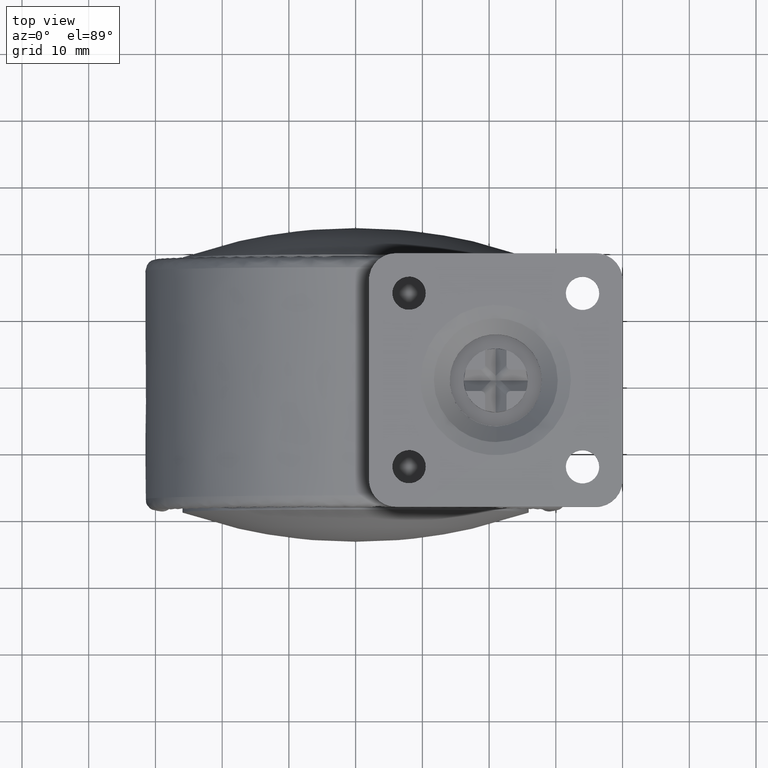
[diagram: clean part render]
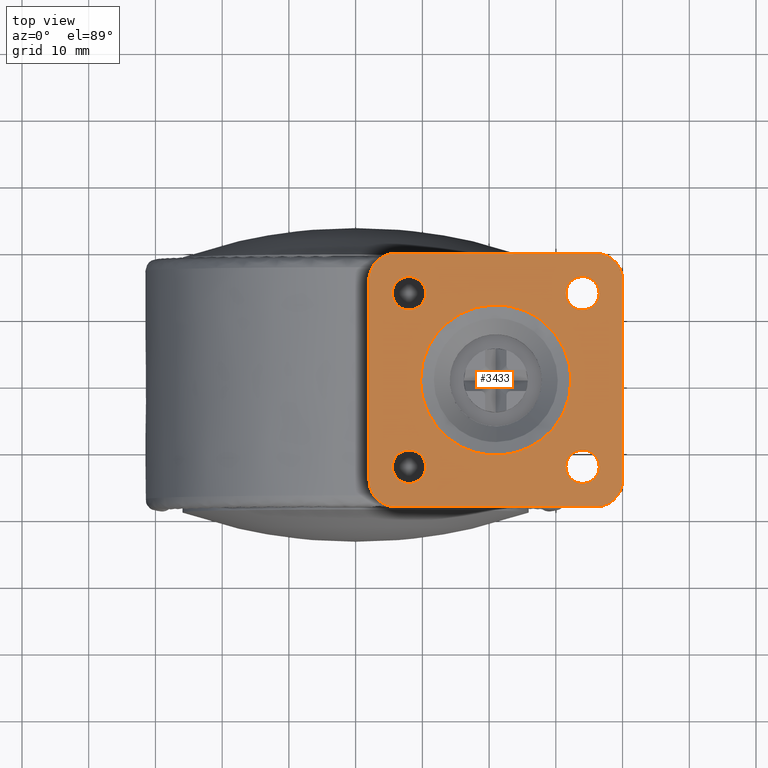
[diagram: same view with one face highlighted and labeled with its STEP entity id]
A machine part, top view. The second image highlights one B-rep face of the part: STEP entity #3433.
In plain terms, the highlighted face is a freeform B-spline surface patch.
Its self-contained STEP definition (entity closure, byte-faithful):
#1005=CARTESIAN_POINT('',(8.704914413077578,10.517476184124179,42.500000000000007));
#1006=VERTEX_POINT('',#1005);
#1012=CARTESIAN_POINT('',(11.500000000000000,13.0,42.500000000000000));
#1013=VERTEX_POINT('',#1012);
#1014=CARTESIAN_POINT('',(8.704914413077578,10.517476184124178,42.500000000000007));
#1015=CARTESIAN_POINT('',(8.851939700586733,10.499999999999996,42.500000000000000));
#1016=CARTESIAN_POINT('',(9.0,10.500000000000000,42.500000000000000));
#1017=CARTESIAN_POINT('',(11.500000000000000,10.499999999999998,42.500000000000000));
#1018=CARTESIAN_POINT('',(11.500000000000000,13.0,42.500000000000000));
#1026=(BOUNDED_CURVE()B_SPLINE_CURVE(2,(#1014,#1015,#1016,#1017,#1018),.UNSPECIFIED.,.F.,.U.)B_SPLINE_CURVE_WITH_KNOTS((3,2,3),(0.229562473477449,0.250000000000000,0.500000000000000),.UNSPECIFIED.)CURVE()GEOMETRIC_REPRESENTATION_ITEM()RATIONAL_B_SPLINE_CURVE((0.956026754113022,0.976055948288899,1.0,0.707106781186548,1.0))REPRESENTATION_ITEM(''));
#1027=EDGE_CURVE('',#1006,#1013,#1026,.T.);
#1029=CARTESIAN_POINT('',(9.152621348901288,15.495336996050741,42.500000000000000));
#1030=VERTEX_POINT('',#1029);
#1031=CARTESIAN_POINT('',(11.500000000000000,13.0,42.500000000000000));
#1032=CARTESIAN_POINT('',(11.499999999999998,15.351765167143089,42.499999999999993));
#1033=CARTESIAN_POINT('',(9.152621348901288,15.495336996050748,42.499999999999993));
#1041=(BOUNDED_CURVE()B_SPLINE_CURVE(2,(#1031,#1032,#1033),.UNSPECIFIED.,.F.,.U.)B_SPLINE_CURVE_WITH_KNOTS((3,3),(0.500000000000000,0.739332962233096),.UNSPECIFIED.)CURVE()GEOMETRIC_REPRESENTATION_ITEM()RATIONAL_B_SPLINE_CURVE((1.0,0.719603993293560,0.976072041654188))REPRESENTATION_ITEM(''));
#1042=EDGE_CURVE('',#1013,#1030,#1041,.T.);
#1116=CARTESIAN_POINT('',(6.499999999999999,13.0,42.500000000000000));
#1117=VERTEX_POINT('',#1116);
#1118=CARTESIAN_POINT('',(9.152621348901288,15.495336996050742,42.500000000000007));
#1119=CARTESIAN_POINT('',(9.076381908310799,15.500000000000005,42.500000000000000));
#1120=CARTESIAN_POINT('',(9.0,15.500000000000000,42.500000000000000));
#1121=CARTESIAN_POINT('',(6.499999999999999,15.500000000000004,42.500000000000000));
#1122=CARTESIAN_POINT('',(6.499999999999999,13.0,42.500000000000000));
#1130=(BOUNDED_CURVE()B_SPLINE_CURVE(2,(#1118,#1119,#1120,#1121,#1122),.UNSPECIFIED.,.F.,.U.)B_SPLINE_CURVE_WITH_KNOTS((3,2,3),(0.739332962233097,0.750000000000000,1.0),.UNSPECIFIED.)CURVE()GEOMETRIC_REPRESENTATION_ITEM()RATIONAL_B_SPLINE_CURVE((0.976072041654189,0.987502787892989,1.0,0.707106781186548,1.0))REPRESENTATION_ITEM(''));
#1131=EDGE_CURVE('',#1030,#1117,#1130,.T.);
#1133=CARTESIAN_POINT('',(6.499999999999999,13.0,42.500000000000000));
#1134=CARTESIAN_POINT('',(6.499999999999999,10.779563685626934,42.499999999999993));
#1135=CARTESIAN_POINT('',(8.704914413077578,10.517476184124178,42.500000000000007));
#1143=(BOUNDED_CURVE()B_SPLINE_CURVE(2,(#1133,#1134,#1135),.UNSPECIFIED.,.F.,.U.)B_SPLINE_CURVE_WITH_KNOTS((3,3),(0.0,0.229562473477449),.UNSPECIFIED.)CURVE()GEOMETRIC_REPRESENTATION_ITEM()RATIONAL_B_SPLINE_CURVE((1.0,0.731050832897648,0.956026754113022))REPRESENTATION_ITEM(''));
#1144=EDGE_CURVE('',#1117,#1006,#1143,.T.);
#1191=CARTESIAN_POINT('',(34.704914413077567,10.517476184124179,42.500000000000000));
#1192=VERTEX_POINT('',#1191);
#1198=CARTESIAN_POINT('',(37.500000000000007,13.0,42.500000000000000));
#1199=VERTEX_POINT('',#1198);
#1200=CARTESIAN_POINT('',(34.704914413077567,10.517476184124178,42.500000000000000));
#1201=CARTESIAN_POINT('',(34.851939700586726,10.500000000000004,42.499999999999993));
#1202=CARTESIAN_POINT('',(35.0,10.500000000000000,42.500000000000000));
#1203=CARTESIAN_POINT('',(37.500000000000007,10.499999999999998,42.500000000000000));
#1204=CARTESIAN_POINT('',(37.500000000000007,13.0,42.500000000000000));
#1212=(BOUNDED_CURVE()B_SPLINE_CURVE(2,(#1200,#1201,#1202,#1203,#1204),.UNSPECIFIED.,.F.,.U.)B_SPLINE_CURVE_WITH_KNOTS((3,2,3),(0.229562473477449,0.250000000000000,0.500000000000000),.UNSPECIFIED.)CURVE()GEOMETRIC_REPRESENTATION_ITEM()RATIONAL_B_SPLINE_CURVE((0.956026754113021,0.976055948288899,1.0,0.707106781186548,1.0))REPRESENTATION_ITEM(''));
#1213=EDGE_CURVE('',#1192,#1199,#1212,.T.);
#1215=CARTESIAN_POINT('',(35.152621348901292,15.495336996050741,42.500000000000000));
#1216=VERTEX_POINT('',#1215);
#1217=CARTESIAN_POINT('',(37.500000000000007,13.0,42.500000000000000));
#1218=CARTESIAN_POINT('',(37.500000000000007,15.351765167143089,42.499999999999993));
#1219=CARTESIAN_POINT('',(35.152621348901292,15.495336996050748,42.499999999999993));
#1227=(BOUNDED_CURVE()B_SPLINE_CURVE(2,(#1217,#1218,#1219),.UNSPECIFIED.,.F.,.U.)B_SPLINE_CURVE_WITH_KNOTS((3,3),(0.500000000000000,0.739332962233096),.UNSPECIFIED.)CURVE()GEOMETRIC_REPRESENTATION_ITEM()RATIONAL_B_SPLINE_CURVE((1.0,0.719603993293560,0.976072041654188))REPRESENTATION_ITEM(''));
#1228=EDGE_CURVE('',#1199,#1216,#1227,.T.);
#1302=CARTESIAN_POINT('',(32.500000000000000,13.0,42.500000000000000));
#1303=VERTEX_POINT('',#1302);
#1304=CARTESIAN_POINT('',(35.152621348901299,15.495336996050746,42.500000000000000));
#1305=CARTESIAN_POINT('',(35.076381908310793,15.499999999999996,42.500000000000007));
#1306=CARTESIAN_POINT('',(35.0,15.500000000000000,42.500000000000000));
#1307=CARTESIAN_POINT('',(32.500000000000007,15.500000000000004,42.500000000000000));
#1308=CARTESIAN_POINT('',(32.500000000000000,13.0,42.500000000000000));
#1316=(BOUNDED_CURVE()B_SPLINE_CURVE(2,(#1304,#1305,#1306,#1307,#1308),.UNSPECIFIED.,.F.,.U.)B_SPLINE_CURVE_WITH_KNOTS((3,2,3),(0.739332962233097,0.750000000000000,1.0),.UNSPECIFIED.)CURVE()GEOMETRIC_REPRESENTATION_ITEM()RATIONAL_B_SPLINE_CURVE((0.976072041654189,0.987502787892989,1.0,0.707106781186548,1.0))REPRESENTATION_ITEM(''));
#1317=EDGE_CURVE('',#1216,#1303,#1316,.T.);
#1319=CARTESIAN_POINT('',(32.500000000000000,13.0,42.500000000000000));
#1320=CARTESIAN_POINT('',(32.500000000000000,10.779563685626941,42.499999999999986));
#1321=CARTESIAN_POINT('',(34.704914413077567,10.517476184124178,42.500000000000000));
#1329=(BOUNDED_CURVE()B_SPLINE_CURVE(2,(#1319,#1320,#1321),.UNSPECIFIED.,.F.,.U.)B_SPLINE_CURVE_WITH_KNOTS((3,3),(0.0,0.229562473477449),.UNSPECIFIED.)CURVE()GEOMETRIC_REPRESENTATION_ITEM()RATIONAL_B_SPLINE_CURVE((1.0,0.731050832897649,0.956026754113021))REPRESENTATION_ITEM(''));
#1330=EDGE_CURVE('',#1303,#1192,#1329,.T.);
#1377=CARTESIAN_POINT('',(34.704914413077567,-15.482523815875821,42.500000000000000));
#1378=VERTEX_POINT('',#1377);
#1384=CARTESIAN_POINT('',(37.500000000000007,-13.0,42.500000000000000));
#1385=VERTEX_POINT('',#1384);
#1386=CARTESIAN_POINT('',(34.704914413077567,-15.482523815875817,42.499999999999993));
#1387=CARTESIAN_POINT('',(34.851939700586726,-15.499999999999998,42.500000000000000));
#1388=CARTESIAN_POINT('',(35.0,-15.500000000000000,42.500000000000000));
#1389=CARTESIAN_POINT('',(37.500000000000007,-15.500000000000004,42.500000000000000));
#1390=CARTESIAN_POINT('',(37.500000000000007,-13.0,42.500000000000000));
#1398=(BOUNDED_CURVE()B_SPLINE_CURVE(2,(#1386,#1387,#1388,#1389,#1390),.UNSPECIFIED.,.F.,.U.)B_SPLINE_CURVE_WITH_KNOTS((3,2,3),(0.229562473477448,0.250000000000000,0.500000000000000),.UNSPECIFIED.)CURVE()GEOMETRIC_REPRESENTATION_ITEM()RATIONAL_B_SPLINE_CURVE((0.956026754113020,0.976055948288898,1.0,0.707106781186548,1.0))REPRESENTATION_ITEM(''));
#1399=EDGE_CURVE('',#1378,#1385,#1398,.T.);
#1401=CARTESIAN_POINT('',(35.152621348901292,-10.504663003949259,42.500000000000000));
#1402=VERTEX_POINT('',#1401);
#1403=CARTESIAN_POINT('',(37.500000000000007,-13.0,42.500000000000000));
#1404=CARTESIAN_POINT('',(37.500000000000007,-10.648234832856907,42.499999999999993));
#1405=CARTESIAN_POINT('',(35.152621348901292,-10.504663003949254,42.499999999999993));
#1413=(BOUNDED_CURVE()B_SPLINE_CURVE(2,(#1403,#1404,#1405),.UNSPECIFIED.,.F.,.U.)B_SPLINE_CURVE_WITH_KNOTS((3,3),(0.500000000000000,0.739332962233096),.UNSPECIFIED.)CURVE()GEOMETRIC_REPRESENTATION_ITEM()RATIONAL_B_SPLINE_CURVE((1.0,0.719603993293560,0.976072041654188))REPRESENTATION_ITEM(''));
#1414=EDGE_CURVE('',#1385,#1402,#1413,.T.);
#1488=CARTESIAN_POINT('',(32.500000000000000,-13.0,42.500000000000000));
#1489=VERTEX_POINT('',#1488);
#1490=CARTESIAN_POINT('',(35.152621348901299,-10.504663003949259,42.500000000000000));
#1491=CARTESIAN_POINT('',(35.076381908310793,-10.499999999999998,42.500000000000007));
#1492=CARTESIAN_POINT('',(35.0,-10.500000000000000,42.500000000000000));
#1493=CARTESIAN_POINT('',(32.500000000000007,-10.499999999999998,42.500000000000000));
#1494=CARTESIAN_POINT('',(32.500000000000000,-13.0,42.500000000000000));
#1502=(BOUNDED_CURVE()B_SPLINE_CURVE(2,(#1490,#1491,#1492,#1493,#1494),.UNSPECIFIED.,.F.,.U.)B_SPLINE_CURVE_WITH_KNOTS((3,2,3),(0.739332962233097,0.750000000000000,1.0),.UNSPECIFIED.)CURVE()GEOMETRIC_REPRESENTATION_ITEM()RATIONAL_B_SPLINE_CURVE((0.976072041654189,0.987502787892989,1.0,0.707106781186548,1.0))REPRESENTATION_ITEM(''));
#1503=EDGE_CURVE('',#1402,#1489,#1502,.T.);
#1505=CARTESIAN_POINT('',(32.500000000000000,-13.0,42.500000000000000));
#1506=CARTESIAN_POINT('',(32.499999999999986,-15.220436314373051,42.499999999999993));
#1507=CARTESIAN_POINT('',(34.704914413077567,-15.482523815875817,42.499999999999993));
#1515=(BOUNDED_CURVE()B_SPLINE_CURVE(2,(#1505,#1506,#1507),.UNSPECIFIED.,.F.,.U.)B_SPLINE_CURVE_WITH_KNOTS((3,3),(0.0,0.229562473477448),.UNSPECIFIED.)CURVE()GEOMETRIC_REPRESENTATION_ITEM()RATIONAL_B_SPLINE_CURVE((1.0,0.731050832897649,0.956026754113020))REPRESENTATION_ITEM(''));
#1516=EDGE_CURVE('',#1489,#1378,#1515,.T.);
#1563=CARTESIAN_POINT('',(8.704914413077578,-15.482523815875821,42.500000000000000));
#1564=VERTEX_POINT('',#1563);
#1570=CARTESIAN_POINT('',(11.500000000000000,-13.0,42.500000000000000));
#1571=VERTEX_POINT('',#1570);
#1572=CARTESIAN_POINT('',(8.704914413077578,-15.482523815875819,42.500000000000007));
#1573=CARTESIAN_POINT('',(8.851939700586732,-15.500000000000002,42.500000000000007));
#1574=CARTESIAN_POINT('',(9.0,-15.500000000000000,42.500000000000000));
#1575=CARTESIAN_POINT('',(11.500000000000000,-15.500000000000004,42.500000000000000));
#1576=CARTESIAN_POINT('',(11.500000000000000,-13.0,42.500000000000000));
#1584=(BOUNDED_CURVE()B_SPLINE_CURVE(2,(#1572,#1573,#1574,#1575,#1576),.UNSPECIFIED.,.F.,.U.)B_SPLINE_CURVE_WITH_KNOTS((3,2,3),(0.229562473477449,0.250000000000000,0.500000000000000),.UNSPECIFIED.)CURVE()GEOMETRIC_REPRESENTATION_ITEM()RATIONAL_B_SPLINE_CURVE((0.956026754113022,0.976055948288899,1.0,0.707106781186548,1.0))REPRESENTATION_ITEM(''));
#1585=EDGE_CURVE('',#1564,#1571,#1584,.T.);
#1587=CARTESIAN_POINT('',(9.152621348901288,-10.504663003949259,42.500000000000000));
#1588=VERTEX_POINT('',#1587);
#1589=CARTESIAN_POINT('',(11.500000000000000,-13.0,42.500000000000000));
#1590=CARTESIAN_POINT('',(11.499999999999998,-10.648234832856907,42.499999999999993));
#1591=CARTESIAN_POINT('',(9.152621348901288,-10.504663003949254,42.499999999999993));
#1599=(BOUNDED_CURVE()B_SPLINE_CURVE(2,(#1589,#1590,#1591),.UNSPECIFIED.,.F.,.U.)B_SPLINE_CURVE_WITH_KNOTS((3,3),(0.500000000000000,0.739332962233096),.UNSPECIFIED.)CURVE()GEOMETRIC_REPRESENTATION_ITEM()RATIONAL_B_SPLINE_CURVE((1.0,0.719603993293560,0.976072041654188))REPRESENTATION_ITEM(''));
#1600=EDGE_CURVE('',#1571,#1588,#1599,.T.);
#1674=CARTESIAN_POINT('',(6.499999999999999,-13.0,42.500000000000000));
#1675=VERTEX_POINT('',#1674);
#1676=CARTESIAN_POINT('',(9.152621348901288,-10.504663003949258,42.500000000000007));
#1677=CARTESIAN_POINT('',(9.076381908310799,-10.499999999999998,42.500000000000000));
#1678=CARTESIAN_POINT('',(9.0,-10.500000000000000,42.500000000000000));
#1679=CARTESIAN_POINT('',(6.499999999999999,-10.499999999999998,42.500000000000000));
#1680=CARTESIAN_POINT('',(6.499999999999999,-13.0,42.500000000000000));
#1688=(BOUNDED_CURVE()B_SPLINE_CURVE(2,(#1676,#1677,#1678,#1679,#1680),.UNSPECIFIED.,.F.,.U.)B_SPLINE_CURVE_WITH_KNOTS((3,2,3),(0.739332962233097,0.750000000000000,1.0),.UNSPECIFIED.)CURVE()GEOMETRIC_REPRESENTATION_ITEM()RATIONAL_B_SPLINE_CURVE((0.976072041654189,0.987502787892989,1.0,0.707106781186548,1.0))REPRESENTATION_ITEM(''));
#1689=EDGE_CURVE('',#1588,#1675,#1688,.T.);
#1691=CARTESIAN_POINT('',(6.499999999999999,-13.0,42.500000000000000));
#1692=CARTESIAN_POINT('',(6.499999999999999,-15.220436314373062,42.499999999999993));
#1693=CARTESIAN_POINT('',(8.704914413077578,-15.482523815875819,42.500000000000007));
#1701=(BOUNDED_CURVE()B_SPLINE_CURVE(2,(#1691,#1692,#1693),.UNSPECIFIED.,.F.,.U.)B_SPLINE_CURVE_WITH_KNOTS((3,3),(0.0,0.229562473477449),.UNSPECIFIED.)CURVE()GEOMETRIC_REPRESENTATION_ITEM()RATIONAL_B_SPLINE_CURVE((1.0,0.731050832897648,0.956026754113022))REPRESENTATION_ITEM(''));
#1702=EDGE_CURVE('',#1675,#1564,#1701,.T.);
#2710=CARTESIAN_POINT('',(14.498001018749560,8.402327325769043,42.500000000000000));
#2711=VERTEX_POINT('',#2710);
#2725=CARTESIAN_POINT('',(10.735937978865740,0.0,42.500000000000000));
#2726=VERTEX_POINT('',#2725);
#2727=CARTESIAN_POINT('',(10.735937978865740,0.0,42.500000000000000));
#2728=CARTESIAN_POINT('',(10.735937978865739,5.043377835646828,42.500000000000000));
#2729=CARTESIAN_POINT('',(14.498001018749560,8.402327325769043,42.500000000000007));
#2737=(BOUNDED_CURVE()B_SPLINE_CURVE(2,(#2727,#2728,#2729),.UNSPECIFIED.,.F.,.U.)B_SPLINE_CURVE_WITH_KNOTS((3,3),(0.0,0.133534809511743),.UNSPECIFIED.)CURVE()GEOMETRIC_REPRESENTATION_ITEM()RATIONAL_B_SPLINE_CURVE((1.0,0.843554239273857,0.854236117407596))REPRESENTATION_ITEM(''));
#2738=EDGE_CURVE('',#2726,#2711,#2737,.T.);
#2740=CARTESIAN_POINT('',(33.264062021134258,0.0,42.500000000000000));
#2741=VERTEX_POINT('',#2740);
#2742=CARTESIAN_POINT('',(33.264062021134258,0.0,42.500000000000000));
#2743=CARTESIAN_POINT('',(33.264062021134258,-11.264062021134260,42.500000000000000));
#2744=CARTESIAN_POINT('',(22.0,-11.264062021134260,42.500000000000000));
#2745=CARTESIAN_POINT('',(10.735937978865740,-11.264062021134260,42.500000000000000));
#2746=CARTESIAN_POINT('',(10.735937978865740,0.0,42.500000000000000));
#2754=(BOUNDED_CURVE()B_SPLINE_CURVE(2,(#2742,#2743,#2744,#2745,#2746),.UNSPECIFIED.,.F.,.U.)B_SPLINE_CURVE_WITH_KNOTS((3,2,3),(0.500000000000000,0.750000000000000,1.0),.UNSPECIFIED.)CURVE()GEOMETRIC_REPRESENTATION_ITEM()RATIONAL_B_SPLINE_CURVE((1.0,0.707106781186548,1.0,0.707106781186548,1.0))REPRESENTATION_ITEM(''));
#2755=EDGE_CURVE('',#2741,#2726,#2754,.T.);
#2757=CARTESIAN_POINT('',(28.963974201157431,8.853369783954797,42.500000000000000));
#2758=VERTEX_POINT('',#2757);
#2759=CARTESIAN_POINT('',(28.963974201157434,8.853369783954797,42.500000000000000));
#2760=CARTESIAN_POINT('',(33.264062021134251,5.470962704290574,42.499999999999993));
#2761=CARTESIAN_POINT('',(33.264062021134258,0.0,42.500000000000000));
#2769=(BOUNDED_CURVE()B_SPLINE_CURVE(2,(#2759,#2760,#2761),.UNSPECIFIED.,.F.,.U.)B_SPLINE_CURVE_WITH_KNOTS((3,3),(0.357040093183758,0.500000000000000),.UNSPECIFIED.)CURVE()GEOMETRIC_REPRESENTATION_ITEM()RATIONAL_B_SPLINE_CURVE((0.856576594591082,0.832512050925279,1.0))REPRESENTATION_ITEM(''));
#2770=EDGE_CURVE('',#2758,#2741,#2769,.T.);
#2807=CARTESIAN_POINT('',(14.498001018749560,8.402327325769043,42.500000000000007));
#2808=CARTESIAN_POINT('',(17.703177623550616,11.264062021134260,42.500000000000000));
#2809=CARTESIAN_POINT('',(22.0,11.264062021134260,42.500000000000000));
#2810=CARTESIAN_POINT('',(25.899237143066806,11.264062021134260,42.500000000000000));
#2811=CARTESIAN_POINT('',(28.963974201157434,8.853369783954797,42.500000000000000));
#2819=(BOUNDED_CURVE()B_SPLINE_CURVE(2,(#2807,#2808,#2809,#2810,#2811),.UNSPECIFIED.,.F.,.U.)B_SPLINE_CURVE_WITH_KNOTS((3,2,3),(0.133534809511743,0.250000000000000,0.357040093183758),.UNSPECIFIED.)CURVE()GEOMETRIC_REPRESENTATION_ITEM()RATIONAL_B_SPLINE_CURVE((0.854236117407596,0.863552541912690,1.0,0.874594730261268,0.856576594591082))REPRESENTATION_ITEM(''));
#2820=EDGE_CURVE('',#2711,#2758,#2819,.T.);
#3031=CARTESIAN_POINT('',(7.0,-19.0,42.500000000000000));
#3032=VERTEX_POINT('',#3031);
#3038=CARTESIAN_POINT('',(3.0,-15.0,42.500000000000000));
#3039=VERTEX_POINT('',#3038);
#3040=CARTESIAN_POINT('',(3.0,-15.0,42.500000000000000));
#3041=CARTESIAN_POINT('',(3.0,-18.999999999999993,42.500000000000000));
#3042=CARTESIAN_POINT('',(7.0,-19.0,42.500000000000000));
#3050=(BOUNDED_CURVE()B_SPLINE_CURVE(2,(#3040,#3041,#3042),.UNSPECIFIED.,.F.,.U.)CURVE()GEOMETRIC_REPRESENTATION_ITEM()QUASI_UNIFORM_CURVE()RATIONAL_B_SPLINE_CURVE((1.0,0.707106781186548,1.0))REPRESENTATION_ITEM(''));
#3051=EDGE_CURVE('',#3039,#3032,#3050,.T.);
#3074=CARTESIAN_POINT('',(37.0,-19.0,42.500000000000000));
#3075=VERTEX_POINT('',#3074);
#3081=CARTESIAN_POINT('',(37.0,-19.0,42.500000000000000));
#3082=CARTESIAN_POINT('',(7.0,-19.0,42.500000000000000));
#3083=QUASI_UNIFORM_CURVE('',1,(#3081,#3082),.UNSPECIFIED.,.F.,.U.);
#3084=EDGE_CURVE('',#3075,#3032,#3083,.T.);
#3118=CARTESIAN_POINT('',(41.0,-15.0,42.500000000000000));
#3119=VERTEX_POINT('',#3118);
#3125=CARTESIAN_POINT('',(37.0,-19.0,42.500000000000000));
#3126=CARTESIAN_POINT('',(41.0,-18.999999999999993,42.500000000000000));
#3127=CARTESIAN_POINT('',(40.999999999999993,-15.0,42.500000000000000));
#3135=(BOUNDED_CURVE()B_SPLINE_CURVE(2,(#3125,#3126,#3127),.UNSPECIFIED.,.F.,.U.)CURVE()GEOMETRIC_REPRESENTATION_ITEM()QUASI_UNIFORM_CURVE()RATIONAL_B_SPLINE_CURVE((1.0,0.707106781186548,1.0))REPRESENTATION_ITEM(''));
#3136=EDGE_CURVE('',#3075,#3119,#3135,.T.);
#3155=CARTESIAN_POINT('',(41.0,15.0,42.500000000000000));
#3156=VERTEX_POINT('',#3155);
#3162=CARTESIAN_POINT('',(41.0,15.0,42.500000000000000));
#3163=CARTESIAN_POINT('',(41.0,-15.0,42.500000000000000));
#3164=QUASI_UNIFORM_CURVE('',1,(#3162,#3163),.UNSPECIFIED.,.F.,.U.);
#3165=EDGE_CURVE('',#3156,#3119,#3164,.T.);
#3199=CARTESIAN_POINT('',(37.0,19.0,42.500000000000000));
#3200=VERTEX_POINT('',#3199);
#3206=CARTESIAN_POINT('',(40.999999999999993,15.0,42.500000000000000));
#3207=CARTESIAN_POINT('',(41.0,18.999999999999993,42.500000000000000));
#3208=CARTESIAN_POINT('',(37.0,19.0,42.500000000000000));
#3216=(BOUNDED_CURVE()B_SPLINE_CURVE(2,(#3206,#3207,#3208),.UNSPECIFIED.,.F.,.U.)CURVE()GEOMETRIC_REPRESENTATION_ITEM()QUASI_UNIFORM_CURVE()RATIONAL_B_SPLINE_CURVE((1.0,0.707106781186548,1.0))REPRESENTATION_ITEM(''));
#3217=EDGE_CURVE('',#3156,#3200,#3216,.T.);
#3236=CARTESIAN_POINT('',(7.0,19.0,42.500000000000000));
#3237=VERTEX_POINT('',#3236);
#3243=CARTESIAN_POINT('',(7.0,19.0,42.500000000000000));
#3244=CARTESIAN_POINT('',(37.0,19.0,42.500000000000000));
#3245=QUASI_UNIFORM_CURVE('',1,(#3243,#3244),.UNSPECIFIED.,.F.,.U.);
#3246=EDGE_CURVE('',#3237,#3200,#3245,.T.);
#3280=CARTESIAN_POINT('',(3.0,15.0,42.500000000000000));
#3281=VERTEX_POINT('',#3280);
#3287=CARTESIAN_POINT('',(7.0,19.0,42.500000000000000));
#3288=CARTESIAN_POINT('',(3.0,18.999999999999993,42.500000000000000));
#3289=CARTESIAN_POINT('',(3.0,15.0,42.500000000000000));
#3297=(BOUNDED_CURVE()B_SPLINE_CURVE(2,(#3287,#3288,#3289),.UNSPECIFIED.,.F.,.U.)CURVE()GEOMETRIC_REPRESENTATION_ITEM()QUASI_UNIFORM_CURVE()RATIONAL_B_SPLINE_CURVE((1.0,0.707106781186548,1.0))REPRESENTATION_ITEM(''));
#3298=EDGE_CURVE('',#3237,#3281,#3297,.T.);
#3316=CARTESIAN_POINT('',(3.0,-15.0,42.500000000000000));
#3317=CARTESIAN_POINT('',(3.0,15.0,42.500000000000000));
#3318=QUASI_UNIFORM_CURVE('',1,(#3316,#3317),.UNSPECIFIED.,.F.,.U.);
#3319=EDGE_CURVE('',#3039,#3281,#3318,.T.);
#3388=CARTESIAN_POINT('',(1.101900073651376,20.898099926348621,42.500000000000000));
#3389=CARTESIAN_POINT('',(42.898100945588062,20.898099926348621,42.500000000000000));
#3390=CARTESIAN_POINT('',(1.101900073651376,-20.898100945588052,42.500000000000000));
#3391=CARTESIAN_POINT('',(42.898100945588062,-20.898100945588052,42.500000000000000));
#3392=B_SPLINE_SURFACE_WITH_KNOTS('',1,1,((#3388,#3390),(#3389,#3391)),.UNSPECIFIED.,.F.,.F.,.U.,(2,2),(2,2),(0.0,41.796200871936684),(0.0,41.796200871936669),.UNSPECIFIED.);
#3393=ORIENTED_EDGE('',*,*,#3319,.F.);
#3394=ORIENTED_EDGE('',*,*,#3051,.T.);
#3395=ORIENTED_EDGE('',*,*,#3084,.F.);
#3396=ORIENTED_EDGE('',*,*,#3136,.T.);
#3397=ORIENTED_EDGE('',*,*,#3165,.F.);
#3398=ORIENTED_EDGE('',*,*,#3217,.T.);
#3399=ORIENTED_EDGE('',*,*,#3246,.F.);
#3400=ORIENTED_EDGE('',*,*,#3298,.T.);
#3401=EDGE_LOOP('',(#3393,#3394,#3395,#3396,#3397,#3398,#3399,#3400));
#3402=FACE_OUTER_BOUND('',#3401,.T.);
#3403=ORIENTED_EDGE('',*,*,#2755,.T.);
#3404=ORIENTED_EDGE('',*,*,#2738,.T.);
#3405=ORIENTED_EDGE('',*,*,#2820,.T.);
#3406=ORIENTED_EDGE('',*,*,#2770,.T.);
#3407=EDGE_LOOP('',(#3403,#3404,#3405,#3406));
#3408=FACE_BOUND('',#3407,.T.);
#3409=ORIENTED_EDGE('',*,*,#1600,.F.);
#3410=ORIENTED_EDGE('',*,*,#1585,.F.);
#3411=ORIENTED_EDGE('',*,*,#1702,.F.);
#3412=ORIENTED_EDGE('',*,*,#1689,.F.);
#3413=EDGE_LOOP('',(#3409,#3410,#3411,#3412));
#3414=FACE_BOUND('',#3413,.T.);
#3415=ORIENTED_EDGE('',*,*,#1414,.F.);
#3416=ORIENTED_EDGE('',*,*,#1399,.F.);
#3417=ORIENTED_EDGE('',*,*,#1516,.F.);
#3418=ORIENTED_EDGE('',*,*,#1503,.F.);
#3419=EDGE_LOOP('',(#3415,#3416,#3417,#3418));
#3420=FACE_BOUND('',#3419,.T.);
#3421=ORIENTED_EDGE('',*,*,#1228,.F.);
#3422=ORIENTED_EDGE('',*,*,#1213,.F.);
#3423=ORIENTED_EDGE('',*,*,#1330,.F.);
#3424=ORIENTED_EDGE('',*,*,#1317,.F.);
#3425=EDGE_LOOP('',(#3421,#3422,#3423,#3424));
#3426=FACE_BOUND('',#3425,.T.);
#3427=ORIENTED_EDGE('',*,*,#1042,.F.);
#3428=ORIENTED_EDGE('',*,*,#1027,.F.);
#3429=ORIENTED_EDGE('',*,*,#1144,.F.);
#3430=ORIENTED_EDGE('',*,*,#1131,.F.);
#3431=EDGE_LOOP('',(#3427,#3428,#3429,#3430));
#3432=FACE_BOUND('',#3431,.T.);
#3433=ADVANCED_FACE('',(#3402,#3408,#3414,#3420,#3426,#3432),#3392,.F.);